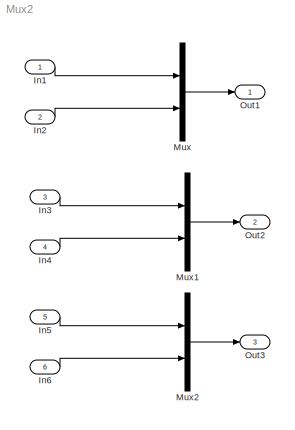
MODEL Mux2
KIND model
BLOCK [Inport] In1
  IconDisplay = Port number
  SID = 1
BLOCK [Inport] In2
  IconDisplay = Port number
  Port = 2
  SID = 2
BLOCK [Inport] In3
  IconDisplay = Port number
  Port = 3
  SID = 3
BLOCK [Inport] In4
  IconDisplay = Port number
  Port = 4
  PortDimensions = 3
  SID = 4
BLOCK [Inport] In5
  IconDisplay = Port number
  Port = 5
  PortDimensions = 2
  SID = 5
BLOCK [Inport] In6
  IconDisplay = Port number
  Port = 6
  PortDimensions = 3
  SID = 6
BLOCK [Mux] Mux
  DisplayOption = bar
  Inputs = 2
  Ports = [2, 1]
  SID = 7
BLOCK [Mux] Mux1
  DisplayOption = bar
  Inputs = 2
  Ports = [2, 1]
  SID = 8
BLOCK [Mux] Mux2
  DisplayOption = bar
  Inputs = 2
  Ports = [2, 1]
  SID = 9
BLOCK [Outport] Out1
  IconDisplay = Port number
  SID = 10
BLOCK [Outport] Out2
  IconDisplay = Port number
  Port = 2
  SID = 11
BLOCK [Outport] Out3
  IconDisplay = Port number
  Port = 3
  SID = 12
LINE In1:1 -> Mux:1
LINE In2:1 -> Mux:2
LINE In3:1 -> Mux1:1
LINE In4:1 -> Mux1:2
LINE In5:1 -> Mux2:1
LINE In6:1 -> Mux2:2
LINE Mux1:1 -> Out2:1
LINE Mux2:1 -> Out3:1
LINE Mux:1 -> Out1:1
